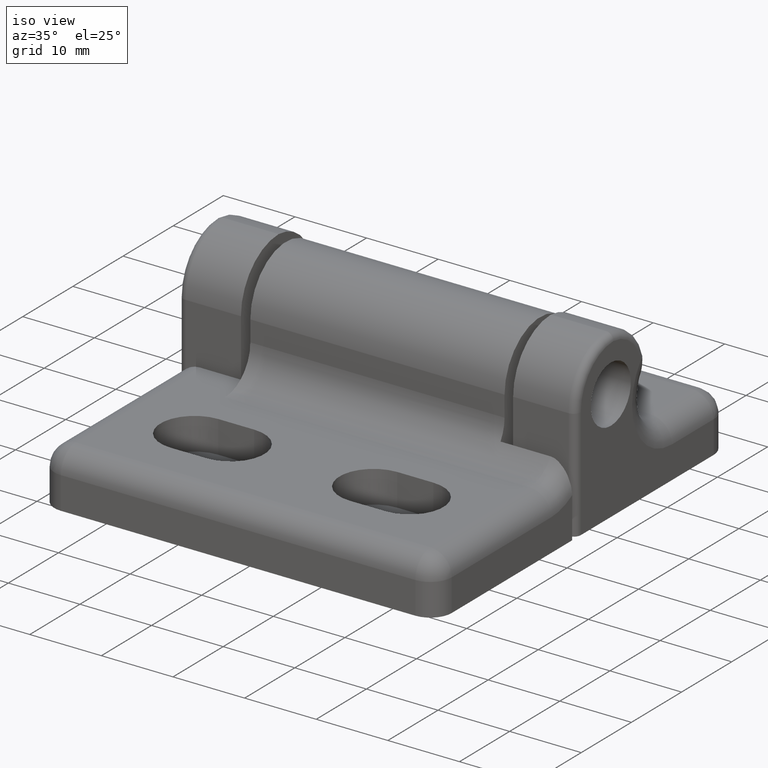
[diagram: clean part render]
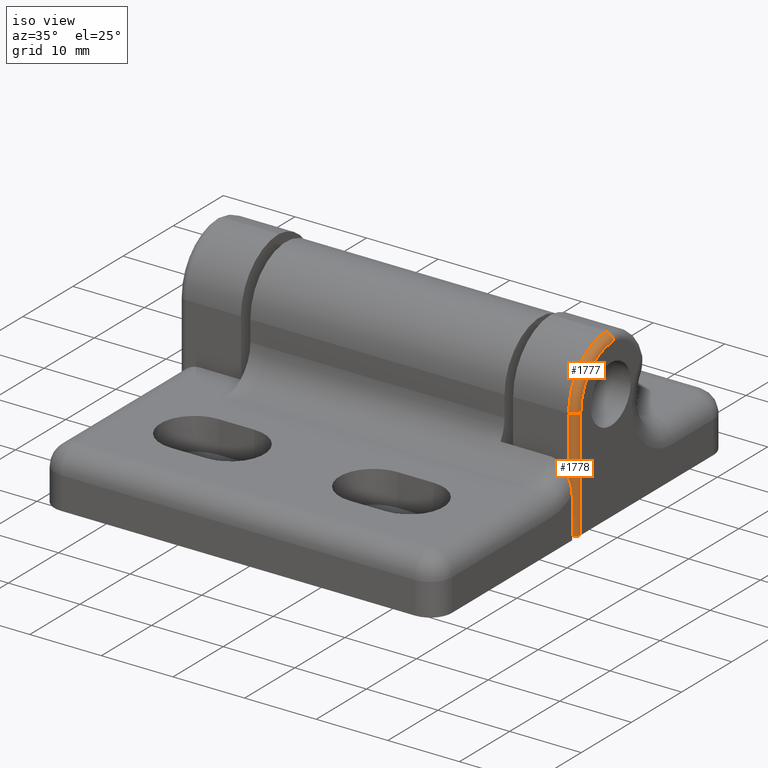
[diagram: same view with one multi-face feature highlighted, each face labeled with its STEP entity id]
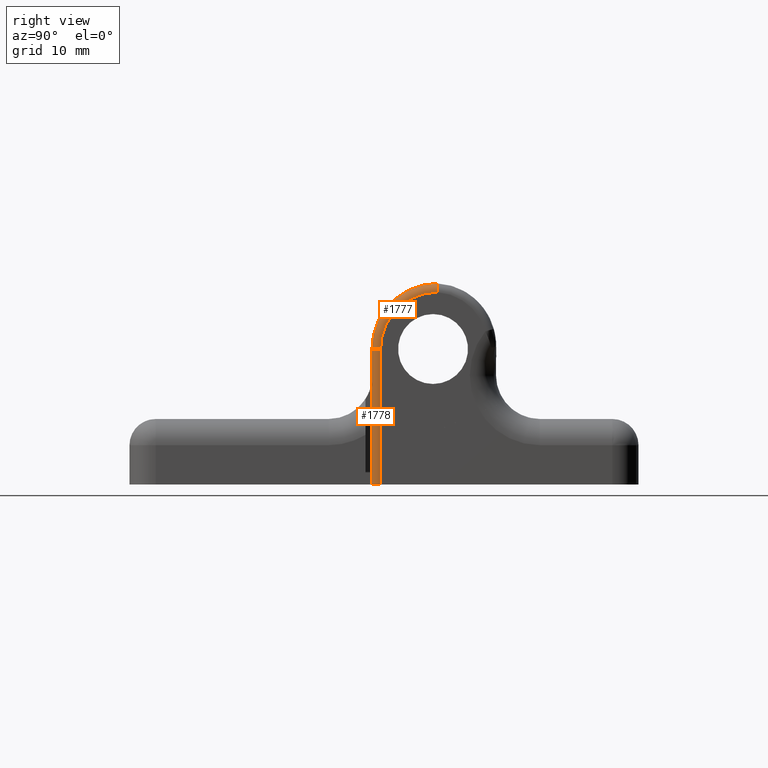
[diagram: same view with one multi-face feature highlighted, each face labeled with its STEP entity id]
A machine part, iso view. The highlighted faces form ONE feature: a constant-radius fillet chain: 2 tangent blend faces with common blend radius 1 mm. The faces share edges in the B-rep.
A second angle (right view) of the same feature is appended — it is thin or edge-on in the first view.
Their STEP definitions:
[1] entity #1777 (Torus):
#25=ELLIPSE('',#1971,1.00058040596228,1.00011728776836);
#115=TOROIDAL_SURFACE('',#1972,6.49999968198073,1.00000001850727);
#535=FACE_OUTER_BOUND('',#652,.T.);
#652=EDGE_LOOP('',(#1630,#1631,#1632,#1633));
#725=CIRCLE('',#1910,7.5);
#740=CIRCLE('',#1937,6.5);
#754=CIRCLE('',#1973,1.);
#870=VERTEX_POINT('',#2902);
#876=VERTEX_POINT('',#2927);
#910=VERTEX_POINT('',#3025);
#911=VERTEX_POINT('',#3026);
#1084=EDGE_CURVE('',#876,#870,#725,.T.);
#1135=EDGE_CURVE('',#910,#911,#740,.T.);
#1167=EDGE_CURVE('',#910,#870,#25,.T.);
#1168=EDGE_CURVE('',#911,#876,#754,.T.);
#1630=ORIENTED_EDGE('',*,*,#1167,.T.);
#1631=ORIENTED_EDGE('',*,*,#1084,.F.);
#1632=ORIENTED_EDGE('',*,*,#1168,.F.);
#1633=ORIENTED_EDGE('',*,*,#1135,.F.);
#1777=ADVANCED_FACE('',(#535),#115,.T.);
#1910=AXIS2_PLACEMENT_3D('',#2929,#2321,#2322);
#1937=AXIS2_PLACEMENT_3D('',#3027,#2411,#2412);
#1971=AXIS2_PLACEMENT_3D('',#3163,#2493,#2494);
#1972=AXIS2_PLACEMENT_3D('',#3164,#2495,#2496);
#1973=AXIS2_PLACEMENT_3D('',#3165,#2497,#2498);
#2321=DIRECTION('center_axis',(-1.,0.,0.));
#2322=DIRECTION('ref_axis',(0.,0.,1.));
#2411=DIRECTION('center_axis',(1.,0.,0.));
#2412=DIRECTION('ref_axis',(0.,0.,1.));
#2493=DIRECTION('center_axis',(3.19601255347921E-5,-0.999600225008378,0.0282734706350443));
#2494=DIRECTION('ref_axis',(-0.127932128646725,-0.028045232514706,-0.991386319954595));
#2495=DIRECTION('center_axis',(1.,-5.95998399835049E-9,5.23888581698674E-9));
#2496=DIRECTION('ref_axis',(5.23888580122169E-9,0.,-1.));
#2497=DIRECTION('center_axis',(0.,0.,-1.));
#2498=DIRECTION('ref_axis',(-1.,0.,0.));
#2902=CARTESIAN_POINT('',(36.75,22.4677756572769,23.4977729309186));
#2927=CARTESIAN_POINT('',(36.75,14.9677756572818,15.9977729309299));
#2929=CARTESIAN_POINT('Origin',(36.75,22.4677756572818,15.9977729309299));
#3025=CARTESIAN_POINT('',(37.75,22.4395211150545,22.497711521474));
#3026=CARTESIAN_POINT('',(37.75,15.9677756572818,15.9977729309299));
#3027=CARTESIAN_POINT('Origin',(37.75,22.4677756572818,15.9977729309299));
#3163=CARTESIAN_POINT('Origin',(36.7498751313457,22.4394859868082,22.4976001065493));
#3164=CARTESIAN_POINT('Origin',(36.7500000203,22.4677754224731,15.9977731732477));
#3165=CARTESIAN_POINT('Origin',(36.75,15.9677756572818,15.9977729309299));
[2] entity #1778 (Cylinder):
#216=LINE('',#2950,#359);
#245=LINE('',#3028,#388);
#359=VECTOR('',#2340,15.5);
#388=VECTOR('',#2413,15.5);
#443=CYLINDRICAL_SURFACE('',#1974,1.);
#536=FACE_OUTER_BOUND('',#653,.T.);
#653=EDGE_LOOP('',(#1634,#1635,#1636,#1637));
#735=CIRCLE('',#1930,1.);
#754=CIRCLE('',#1973,1.);
#876=VERTEX_POINT('',#2927);
#884=VERTEX_POINT('',#2948);
#902=VERTEX_POINT('',#3004);
#911=VERTEX_POINT('',#3026);
#1094=EDGE_CURVE('',#884,#876,#216,.T.);
#1125=EDGE_CURVE('',#902,#884,#735,.T.);
#1136=EDGE_CURVE('',#911,#902,#245,.T.);
#1168=EDGE_CURVE('',#911,#876,#754,.T.);
#1634=ORIENTED_EDGE('',*,*,#1168,.T.);
#1635=ORIENTED_EDGE('',*,*,#1094,.F.);
#1636=ORIENTED_EDGE('',*,*,#1125,.F.);
#1637=ORIENTED_EDGE('',*,*,#1136,.F.);
#1778=ADVANCED_FACE('',(#536),#443,.T.);
#1930=AXIS2_PLACEMENT_3D('',#3006,#2392,#2393);
#1973=AXIS2_PLACEMENT_3D('',#3165,#2497,#2498);
#1974=AXIS2_PLACEMENT_3D('',#3166,#2499,#2500);
#2340=DIRECTION('',(0.,0.,1.));
#2392=DIRECTION('center_axis',(0.,0.,-1.));
#2393=DIRECTION('ref_axis',(1.,0.,0.));
#2413=DIRECTION('',(0.,0.,-1.));
#2497=DIRECTION('center_axis',(0.,0.,-1.));
#2498=DIRECTION('ref_axis',(-1.,0.,0.));
#2499=DIRECTION('center_axis',(0.,0.,-1.));
#2500=DIRECTION('ref_axis',(-1.,0.,0.));
#2927=CARTESIAN_POINT('',(36.75,14.9677756572818,15.9977729309299));
#2948=CARTESIAN_POINT('',(36.75,14.9677756572819,0.497772930929919));
#2950=CARTESIAN_POINT('',(36.75,14.9677756572819,0.497772930929919));
#3004=CARTESIAN_POINT('',(37.75,15.9677756572818,0.497772930929919));
#3006=CARTESIAN_POINT('Origin',(36.75,15.9677756572818,0.497772930929919));
#3026=CARTESIAN_POINT('',(37.75,15.9677756572818,15.9977729309299));
#3028=CARTESIAN_POINT('',(37.75,15.9677756572818,15.9977729309299));
#3165=CARTESIAN_POINT('Origin',(36.75,15.9677756572818,15.9977729309299));
#3166=CARTESIAN_POINT('Origin',(36.75,15.9677756572818,15.9977729409299));